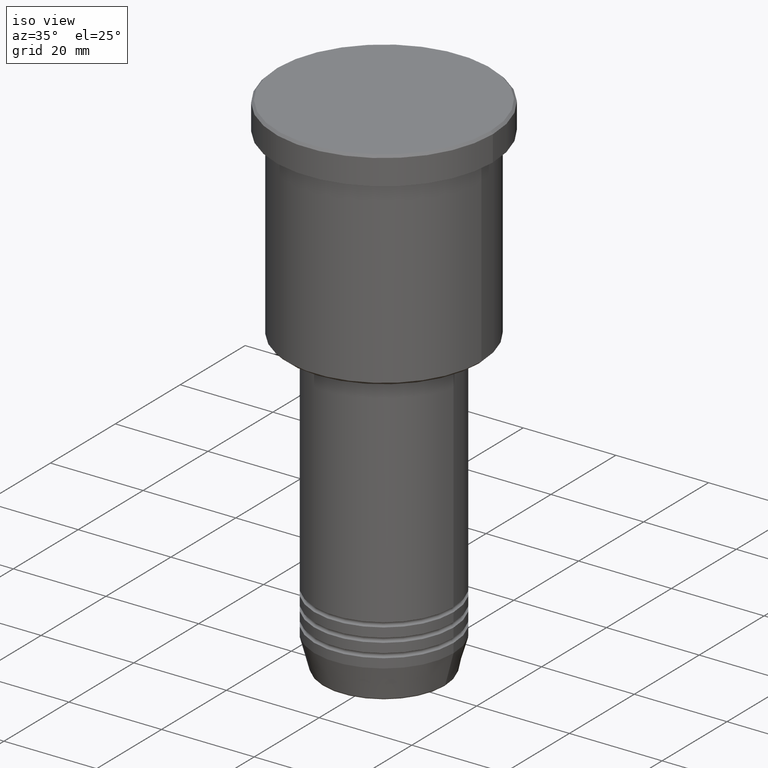
[diagram: clean part render]
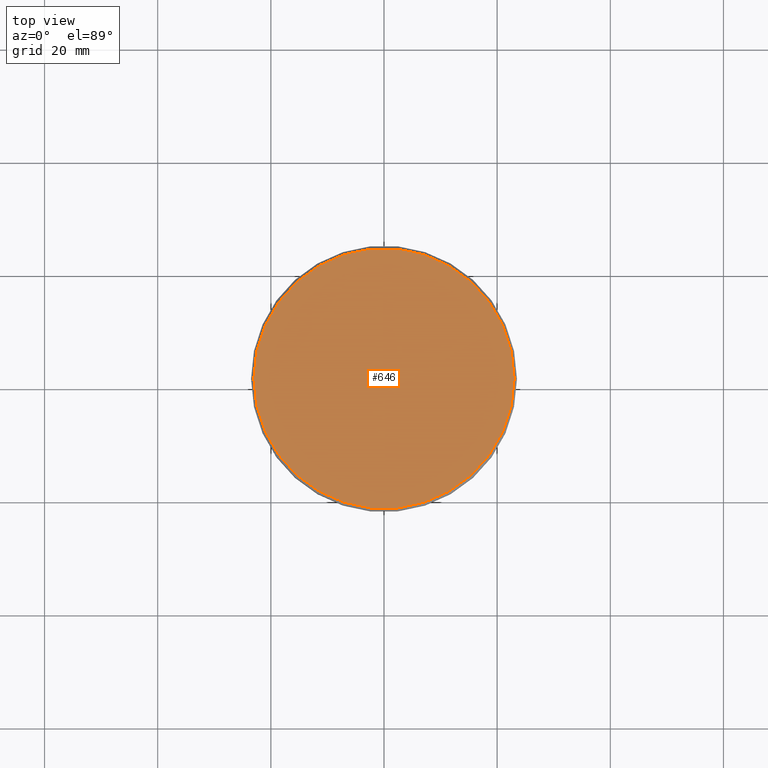
[diagram: tour spotlight — one face highlighted and labeled with its STEP entity id]
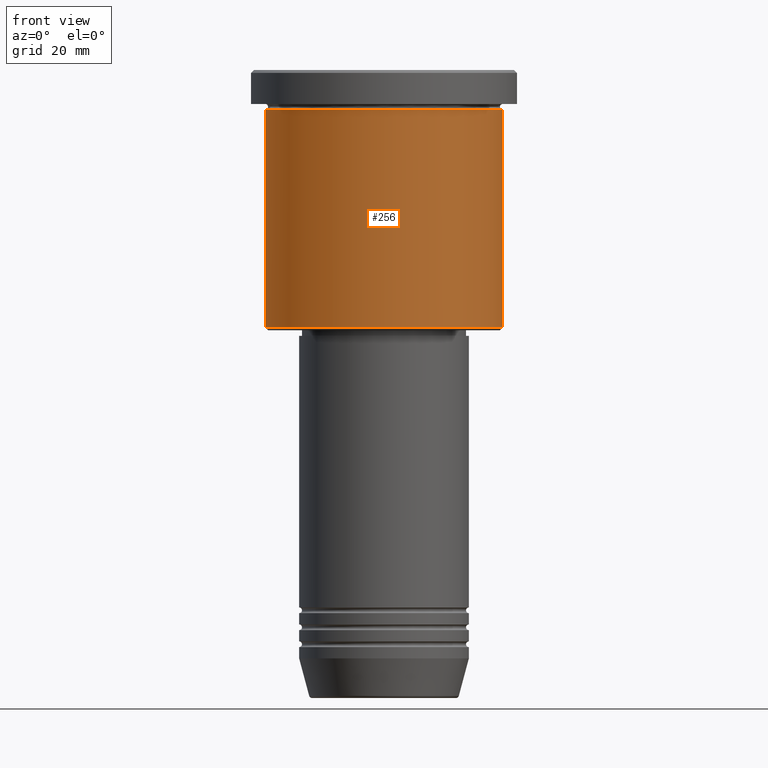
[diagram: tour spotlight — one face highlighted and labeled with its STEP entity id]
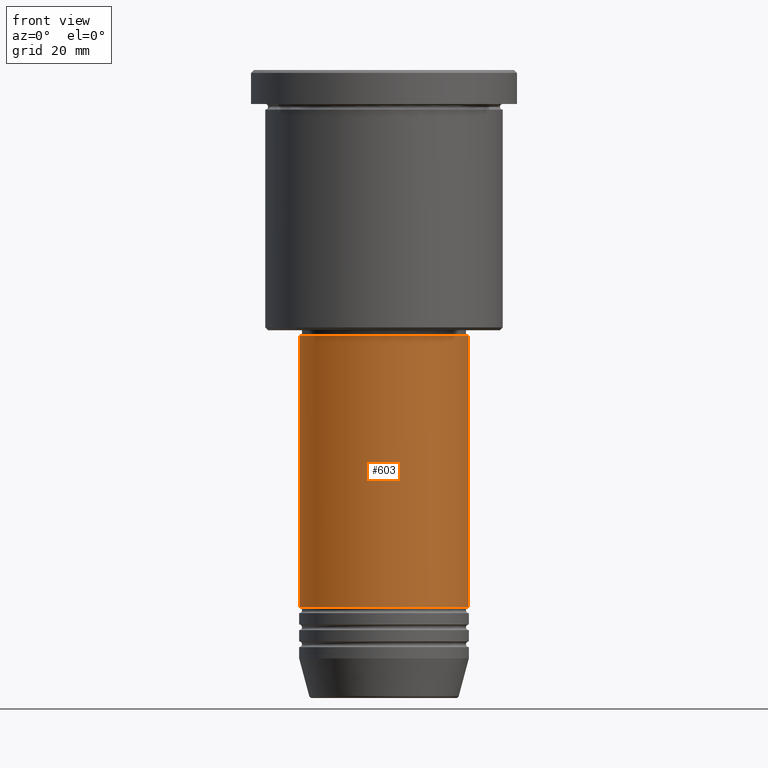
[diagram: tour spotlight — one face highlighted and labeled with its STEP entity id]
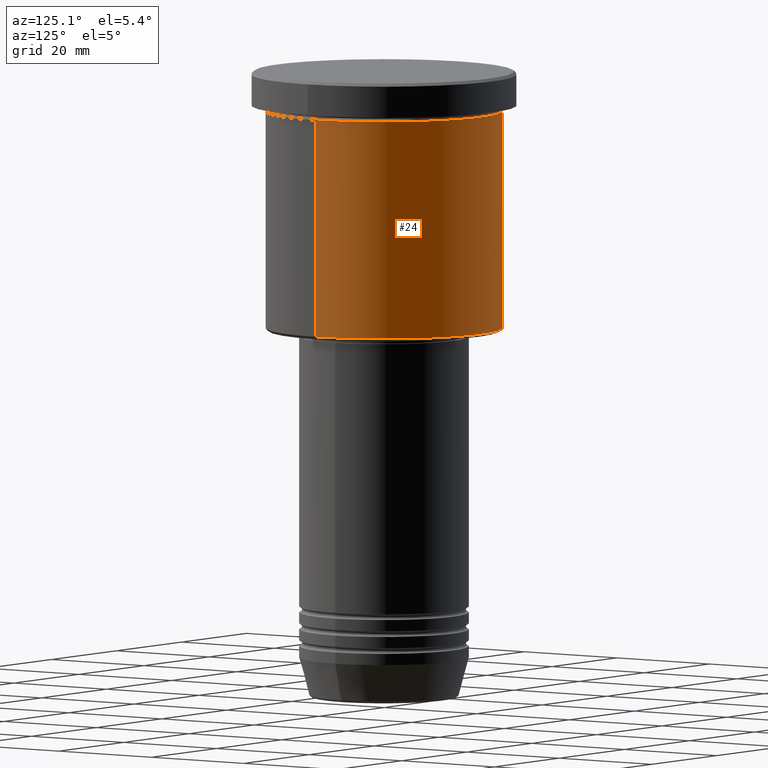
[diagram: tour spotlight — one face highlighted and labeled with its STEP entity id]
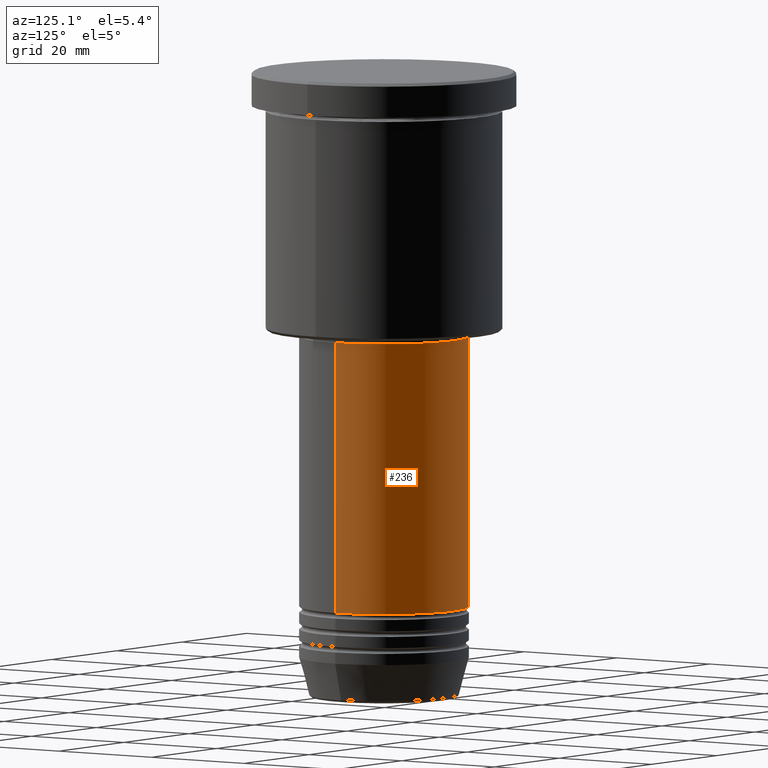
[diagram: tour spotlight — one face highlighted and labeled with its STEP entity id]
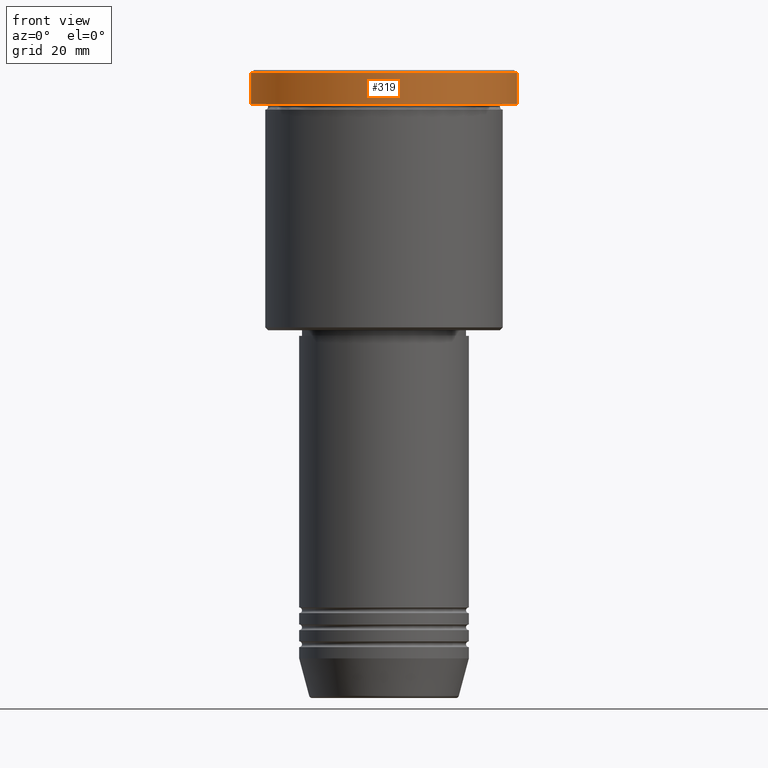
[diagram: tour spotlight — one face highlighted and labeled with its STEP entity id]
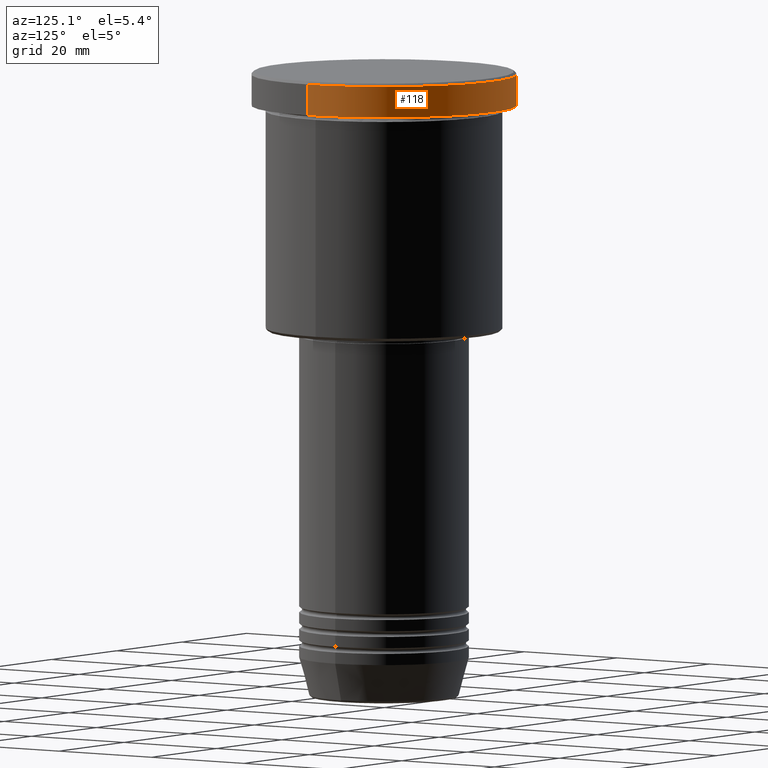
[diagram: tour spotlight — one face highlighted and labeled with its STEP entity id]
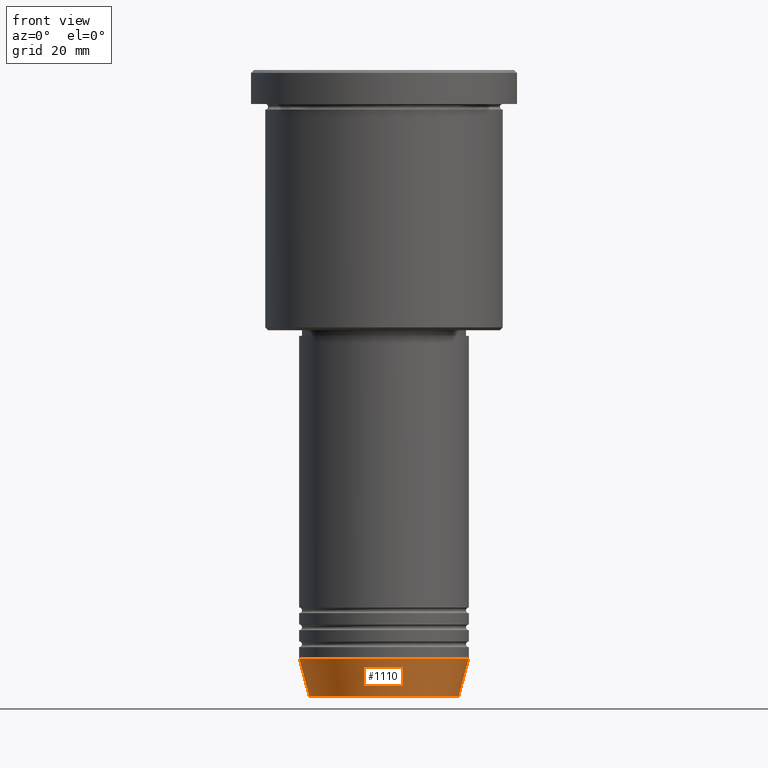
[diagram: tour spotlight — one face highlighted and labeled with its STEP entity id]
A machine part: a face-by-face anatomy tour. The part has 43 B-rep faces; the first image is the clean iso view, then the 8 largest visible faces are spotlighted one at a time (largest first), each with its STEP entity span.

Face 1 — top view, entity #646. In plain terms, the highlighted planar face has unit normal (0, -0, 1).
Definition (entity closure, byte-faithful):
#6 = CARTESIAN_POINT ( 'NONE',  ( 0.000000000000000000, 0.000000000000000000, 0.000000000000000000 ) ) ;
#207 = DIRECTION ( 'NONE',  ( -0.000000000000000000, -0.000000000000000000, 1.000000000000000000 ) ) ;
#226 = AXIS2_PLACEMENT_3D ( 'NONE', #6, #290, #749 ) ;
#290 = DIRECTION ( 'NONE',  ( -0.000000000000000000, -0.000000000000000000, 1.000000000000000000 ) ) ;
#305 = DIRECTION ( 'NONE',  ( 1.000000000000000000, 0.000000000000000000, 0.000000000000000000 ) ) ;
#464 = CARTESIAN_POINT ( 'NONE',  ( 23.00000000000001066, 2.847303808017596928E-15, 0.000000000000000000 ) ) ;
#490 = AXIS2_PLACEMENT_3D ( 'NONE', #946, #207, #497 ) ;
#497 = DIRECTION ( 'NONE',  ( 1.000000000000000000, 0.000000000000000000, 0.000000000000000000 ) ) ;
#517 = FACE_OUTER_BOUND ( 'NONE', #578, .T. ) ;
#528 = VERTEX_POINT ( 'NONE', #685 ) ;
#542 = AXIS2_PLACEMENT_3D ( 'NONE', #1119, #678, #305 ) ;
#578 = EDGE_LOOP ( 'NONE', ( #764, #1169 ) ) ;
#646 = ADVANCED_FACE ( 'NONE', ( #517 ), #870, .T. ) ;
#678 = DIRECTION ( 'NONE',  ( 0.000000000000000000, -0.000000000000000000, 1.000000000000000000 ) ) ;
#685 = CARTESIAN_POINT ( 'NONE',  ( -23.00000000000001066, 0.000000000000000000, 0.000000000000000000 ) ) ;
#711 = CIRCLE ( 'NONE', #226, 23.00000000000001066 ) ;
#733 = VERTEX_POINT ( 'NONE', #464 ) ;
#749 = DIRECTION ( 'NONE',  ( 1.000000000000000000, 0.000000000000000000, 0.000000000000000000 ) ) ;
#764 = ORIENTED_EDGE ( 'NONE', *, *, #1170, .T. ) ;
#778 = EDGE_CURVE ( 'NONE', #733, #528, #711, .T. ) ;
#870 = PLANE ( 'NONE',  #542 ) ;
#946 = CARTESIAN_POINT ( 'NONE',  ( 0.000000000000000000, 0.000000000000000000, 0.000000000000000000 ) ) ;
#1119 = CARTESIAN_POINT ( 'NONE',  ( 0.000000000000000000, 0.000000000000000000, 0.000000000000000000 ) ) ;
#1159 = CIRCLE ( 'NONE', #490, 23.00000000000001066 ) ;
#1169 = ORIENTED_EDGE ( 'NONE', *, *, #778, .T. ) ;
#1170 = EDGE_CURVE ( 'NONE', #528, #733, #1159, .T. ) ;

Face 2 — front view, entity #256. In plain terms, the highlighted cylindrical surface (partial cylindrical patch) has radius 21 mm, axis along (-0, -0, 1).
Definition (entity closure, byte-faithful):
#9 = AXIS2_PLACEMENT_3D ( 'NONE', #1100, #740, #934 ) ;
#66 = CARTESIAN_POINT ( 'NONE',  ( 21.00000000000000000, 0.000000000000000000, 0.000000000000000000 ) ) ;
#68 = DIRECTION ( 'NONE',  ( -0.000000000000000000, -0.000000000000000000, 1.000000000000000000 ) ) ;
#121 = ORIENTED_EDGE ( 'NONE', *, *, #697, .T. ) ;
#215 = DIRECTION ( 'NONE',  ( 1.000000000000000000, 0.000000000000000000, 0.000000000000000000 ) ) ;
#218 = CARTESIAN_POINT ( 'NONE',  ( -21.00000000000000000, 2.571758278209441661E-15, 0.000000000000000000 ) ) ;
#255 = LINE ( 'NONE', #66, #466 ) ;
#256 = ADVANCED_FACE ( 'NONE', ( #480 ), #1181, .T. ) ;
#322 = EDGE_LOOP ( 'NONE', ( #718, #121, #1072, #511 ) ) ;
#351 = CIRCLE ( 'NONE', #369, 21.00000000000000000 ) ;
#369 = AXIS2_PLACEMENT_3D ( 'NONE', #405, #766, #215 ) ;
#405 = CARTESIAN_POINT ( 'NONE',  ( 0.000000000000000000, 0.000000000000000000, -6.999999999999994671 ) ) ;
#410 = AXIS2_PLACEMENT_3D ( 'NONE', #974, #68, #632 ) ;
#466 = VECTOR ( 'NONE', #978, 1000.000000000000000 ) ;
#480 = FACE_OUTER_BOUND ( 'NONE', #322, .T. ) ;
#510 = CARTESIAN_POINT ( 'NONE',  ( -21.00000000000000000, 2.571758278209441661E-15, -45.49999999999998579 ) ) ;
#511 = ORIENTED_EDGE ( 'NONE', *, *, #527, .F. ) ;
#527 = EDGE_CURVE ( 'NONE', #695, #1056, #351, .T. ) ;
#627 = CARTESIAN_POINT ( 'NONE',  ( -21.00000000000000000, 2.571758278209441661E-15, -6.999999999999994671 ) ) ;
#632 = DIRECTION ( 'NONE',  ( -1.000000000000000000, 0.000000000000000000, 0.000000000000000000 ) ) ;
#649 = CARTESIAN_POINT ( 'NONE',  ( 21.00000000000000000, 0.000000000000000000, -6.999999999999994671 ) ) ;
#672 = CIRCLE ( 'NONE', #410, 21.00000000000000000 ) ;
#680 = DIRECTION ( 'NONE',  ( -0.000000000000000000, -0.000000000000000000, 1.000000000000000000 ) ) ;
#695 = VERTEX_POINT ( 'NONE', #627 ) ;
#697 = EDGE_CURVE ( 'NONE', #864, #858, #672, .T. ) ;
#718 = ORIENTED_EDGE ( 'NONE', *, *, #1163, .F. ) ;
#740 = DIRECTION ( 'NONE',  ( -0.000000000000000000, -0.000000000000000000, 1.000000000000000000 ) ) ;
#757 = LINE ( 'NONE', #218, #932 ) ;
#766 = DIRECTION ( 'NONE',  ( -0.000000000000000000, -0.000000000000000000, 1.000000000000000000 ) ) ;
#858 = VERTEX_POINT ( 'NONE', #939 ) ;
#864 = VERTEX_POINT ( 'NONE', #510 ) ;
#932 = VECTOR ( 'NONE', #680, 1000.000000000000000 ) ;
#934 = DIRECTION ( 'NONE',  ( 1.000000000000000000, 0.000000000000000000, 0.000000000000000000 ) ) ;
#939 = CARTESIAN_POINT ( 'NONE',  ( 21.00000000000000000, 0.000000000000000000, -45.49999999999998579 ) ) ;
#974 = CARTESIAN_POINT ( 'NONE',  ( 0.000000000000000000, 0.000000000000000000, -45.49999999999998579 ) ) ;
#976 = EDGE_CURVE ( 'NONE', #858, #1056, #255, .T. ) ;
#978 = DIRECTION ( 'NONE',  ( -0.000000000000000000, -0.000000000000000000, 1.000000000000000000 ) ) ;
#1056 = VERTEX_POINT ( 'NONE', #649 ) ;
#1072 = ORIENTED_EDGE ( 'NONE', *, *, #976, .T. ) ;
#1100 = CARTESIAN_POINT ( 'NONE',  ( 0.000000000000000000, 0.000000000000000000, 0.000000000000000000 ) ) ;
#1163 = EDGE_CURVE ( 'NONE', #864, #695, #757, .T. ) ;
#1181 = CYLINDRICAL_SURFACE ( 'NONE', #9, 21.00000000000000000 ) ;

Face 3 — front view, entity #603. In plain terms, the highlighted cylindrical surface (partial cylindrical patch) has radius 15 mm, axis along (-0, -0, 1).
Definition (entity closure, byte-faithful):
#29 = DIRECTION ( 'NONE',  ( -0.000000000000000000, -0.000000000000000000, 1.000000000000000000 ) ) ;
#43 = CARTESIAN_POINT ( 'NONE',  ( 0.000000000000000000, 0.000000000000000000, 0.000000000000000000 ) ) ;
#72 = DIRECTION ( 'NONE',  ( 1.000000000000000000, 0.000000000000000000, 0.000000000000000000 ) ) ;
#77 = VERTEX_POINT ( 'NONE', #1035 ) ;
#282 = DIRECTION ( 'NONE',  ( -0.000000000000000000, -0.000000000000000000, 1.000000000000000000 ) ) ;
#284 = CARTESIAN_POINT ( 'NONE',  ( 15.00000000000000000, 0.000000000000000000, -47.00000000000000711 ) ) ;
#301 = LINE ( 'NONE', #924, #334 ) ;
#317 = DIRECTION ( 'NONE',  ( 1.000000000000000000, 0.000000000000000000, 0.000000000000000000 ) ) ;
#334 = VECTOR ( 'NONE', #1011, 1000.000000000000000 ) ;
#337 = CYLINDRICAL_SURFACE ( 'NONE', #1041, 15.00000000000000000 ) ;
#360 = EDGE_CURVE ( 'NONE', #800, #478, #463, .T. ) ;
#417 = CARTESIAN_POINT ( 'NONE',  ( 15.00000000000000000, 0.000000000000000000, -94.99999999999997158 ) ) ;
#419 = ORIENTED_EDGE ( 'NONE', *, *, #360, .F. ) ;
#463 = CIRCLE ( 'NONE', #1112, 15.00000000000000000 ) ;
#478 = VERTEX_POINT ( 'NONE', #284 ) ;
#499 = ORIENTED_EDGE ( 'NONE', *, *, #756, .F. ) ;
#501 = EDGE_LOOP ( 'NONE', ( #499, #701, #1084, #419 ) ) ;
#549 = DIRECTION ( 'NONE',  ( -0.000000000000000000, -0.000000000000000000, 1.000000000000000000 ) ) ;
#553 = EDGE_CURVE ( 'NONE', #77, #586, #1156, .T. ) ;
#572 = CARTESIAN_POINT ( 'NONE',  ( -15.00000000000000000, 1.836970198721029589E-15, 0.000000000000000000 ) ) ;
#586 = VERTEX_POINT ( 'NONE', #417 ) ;
#590 = FACE_OUTER_BOUND ( 'NONE', #501, .T. ) ;
#602 = DIRECTION ( 'NONE',  ( 1.000000000000000000, 0.000000000000000000, 0.000000000000000000 ) ) ;
#603 = ADVANCED_FACE ( 'NONE', ( #590 ), #337, .T. ) ;
#701 = ORIENTED_EDGE ( 'NONE', *, *, #553, .T. ) ;
#756 = EDGE_CURVE ( 'NONE', #77, #800, #987, .T. ) ;
#775 = AXIS2_PLACEMENT_3D ( 'NONE', #785, #29, #602 ) ;
#781 = DIRECTION ( 'NONE',  ( -0.000000000000000000, -0.000000000000000000, 1.000000000000000000 ) ) ;
#785 = CARTESIAN_POINT ( 'NONE',  ( 0.000000000000000000, 0.000000000000000000, -94.99999999999997158 ) ) ;
#800 = VERTEX_POINT ( 'NONE', #926 ) ;
#816 = CARTESIAN_POINT ( 'NONE',  ( 0.000000000000000000, 0.000000000000000000, -47.00000000000000711 ) ) ;
#924 = CARTESIAN_POINT ( 'NONE',  ( 15.00000000000000000, 0.000000000000000000, 0.000000000000000000 ) ) ;
#926 = CARTESIAN_POINT ( 'NONE',  ( -15.00000000000000000, 1.836970198721029589E-15, -47.00000000000000711 ) ) ;
#930 = VECTOR ( 'NONE', #282, 1000.000000000000000 ) ;
#987 = LINE ( 'NONE', #572, #930 ) ;
#1011 = DIRECTION ( 'NONE',  ( -0.000000000000000000, -0.000000000000000000, 1.000000000000000000 ) ) ;
#1035 = CARTESIAN_POINT ( 'NONE',  ( -15.00000000000000000, 1.836970198721029589E-15, -94.99999999999997158 ) ) ;
#1041 = AXIS2_PLACEMENT_3D ( 'NONE', #43, #781, #317 ) ;
#1084 = ORIENTED_EDGE ( 'NONE', *, *, #1145, .T. ) ;
#1112 = AXIS2_PLACEMENT_3D ( 'NONE', #816, #549, #72 ) ;
#1145 = EDGE_CURVE ( 'NONE', #586, #478, #301, .T. ) ;
#1156 = CIRCLE ( 'NONE', #775, 15.00000000000000000 ) ;

Face 4 — auxiliary view, entity #24. In plain terms, the highlighted cylindrical surface (partial cylindrical patch) has radius 21 mm, axis along (-0, -0, 1).
Definition (entity closure, byte-faithful):
#24 = ADVANCED_FACE ( 'NONE', ( #514 ), #82, .T. ) ;
#66 = CARTESIAN_POINT ( 'NONE',  ( 21.00000000000000000, 0.000000000000000000, 0.000000000000000000 ) ) ;
#82 = CYLINDRICAL_SURFACE ( 'NONE', #409, 21.00000000000000000 ) ;
#89 = CIRCLE ( 'NONE', #1058, 21.00000000000000000 ) ;
#194 = ORIENTED_EDGE ( 'NONE', *, *, #1163, .T. ) ;
#218 = CARTESIAN_POINT ( 'NONE',  ( -21.00000000000000000, 2.571758278209441661E-15, 0.000000000000000000 ) ) ;
#255 = LINE ( 'NONE', #66, #466 ) ;
#258 = DIRECTION ( 'NONE',  ( -0.000000000000000000, -0.000000000000000000, 1.000000000000000000 ) ) ;
#262 = CARTESIAN_POINT ( 'NONE',  ( 0.000000000000000000, 0.000000000000000000, -6.999999999999994671 ) ) ;
#345 = EDGE_CURVE ( 'NONE', #1056, #695, #875, .T. ) ;
#409 = AXIS2_PLACEMENT_3D ( 'NONE', #437, #872, #611 ) ;
#437 = CARTESIAN_POINT ( 'NONE',  ( 0.000000000000000000, 0.000000000000000000, 0.000000000000000000 ) ) ;
#466 = VECTOR ( 'NONE', #978, 1000.000000000000000 ) ;
#510 = CARTESIAN_POINT ( 'NONE',  ( -21.00000000000000000, 2.571758278209441661E-15, -45.49999999999998579 ) ) ;
#514 = FACE_OUTER_BOUND ( 'NONE', #783, .T. ) ;
#611 = DIRECTION ( 'NONE',  ( 1.000000000000000000, 0.000000000000000000, 0.000000000000000000 ) ) ;
#627 = CARTESIAN_POINT ( 'NONE',  ( -21.00000000000000000, 2.571758278209441661E-15, -6.999999999999994671 ) ) ;
#649 = CARTESIAN_POINT ( 'NONE',  ( 21.00000000000000000, 0.000000000000000000, -6.999999999999994671 ) ) ;
#680 = DIRECTION ( 'NONE',  ( -0.000000000000000000, -0.000000000000000000, 1.000000000000000000 ) ) ;
#695 = VERTEX_POINT ( 'NONE', #627 ) ;
#705 = EDGE_CURVE ( 'NONE', #858, #864, #89, .T. ) ;
#757 = LINE ( 'NONE', #218, #932 ) ;
#765 = ORIENTED_EDGE ( 'NONE', *, *, #345, .F. ) ;
#783 = EDGE_LOOP ( 'NONE', ( #1049, #194, #765, #979 ) ) ;
#858 = VERTEX_POINT ( 'NONE', #939 ) ;
#864 = VERTEX_POINT ( 'NONE', #510 ) ;
#872 = DIRECTION ( 'NONE',  ( -0.000000000000000000, -0.000000000000000000, 1.000000000000000000 ) ) ;
#875 = CIRCLE ( 'NONE', #1018, 21.00000000000000000 ) ;
#932 = VECTOR ( 'NONE', #680, 1000.000000000000000 ) ;
#939 = CARTESIAN_POINT ( 'NONE',  ( 21.00000000000000000, 0.000000000000000000, -45.49999999999998579 ) ) ;
#976 = EDGE_CURVE ( 'NONE', #858, #1056, #255, .T. ) ;
#978 = DIRECTION ( 'NONE',  ( -0.000000000000000000, -0.000000000000000000, 1.000000000000000000 ) ) ;
#979 = ORIENTED_EDGE ( 'NONE', *, *, #976, .F. ) ;
#980 = DIRECTION ( 'NONE',  ( -1.000000000000000000, 0.000000000000000000, 0.000000000000000000 ) ) ;
#989 = DIRECTION ( 'NONE',  ( 1.000000000000000000, 0.000000000000000000, 0.000000000000000000 ) ) ;
#1018 = AXIS2_PLACEMENT_3D ( 'NONE', #262, #258, #989 ) ;
#1049 = ORIENTED_EDGE ( 'NONE', *, *, #705, .T. ) ;
#1056 = VERTEX_POINT ( 'NONE', #649 ) ;
#1058 = AXIS2_PLACEMENT_3D ( 'NONE', #1165, #1161, #980 ) ;
#1161 = DIRECTION ( 'NONE',  ( -0.000000000000000000, -0.000000000000000000, 1.000000000000000000 ) ) ;
#1163 = EDGE_CURVE ( 'NONE', #864, #695, #757, .T. ) ;
#1165 = CARTESIAN_POINT ( 'NONE',  ( 0.000000000000000000, 0.000000000000000000, -45.49999999999998579 ) ) ;

Face 5 — auxiliary view, entity #236. In plain terms, the highlighted cylindrical surface (partial cylindrical patch) has radius 15 mm, axis along (-0, -0, 1).
Definition (entity closure, byte-faithful):
#34 = DIRECTION ( 'NONE',  ( -0.000000000000000000, -0.000000000000000000, 1.000000000000000000 ) ) ;
#77 = VERTEX_POINT ( 'NONE', #1035 ) ;
#178 = DIRECTION ( 'NONE',  ( -0.000000000000000000, -0.000000000000000000, 1.000000000000000000 ) ) ;
#200 = CARTESIAN_POINT ( 'NONE',  ( 0.000000000000000000, 0.000000000000000000, -47.00000000000000711 ) ) ;
#234 = DIRECTION ( 'NONE',  ( -0.000000000000000000, -0.000000000000000000, 1.000000000000000000 ) ) ;
#236 = ADVANCED_FACE ( 'NONE', ( #666 ), #1016, .T. ) ;
#249 = CARTESIAN_POINT ( 'NONE',  ( 0.000000000000000000, 0.000000000000000000, -94.99999999999997158 ) ) ;
#279 = ORIENTED_EDGE ( 'NONE', *, *, #840, .F. ) ;
#282 = DIRECTION ( 'NONE',  ( -0.000000000000000000, -0.000000000000000000, 1.000000000000000000 ) ) ;
#284 = CARTESIAN_POINT ( 'NONE',  ( 15.00000000000000000, 0.000000000000000000, -47.00000000000000711 ) ) ;
#301 = LINE ( 'NONE', #924, #334 ) ;
#334 = VECTOR ( 'NONE', #1011, 1000.000000000000000 ) ;
#387 = CARTESIAN_POINT ( 'NONE',  ( 0.000000000000000000, 0.000000000000000000, 0.000000000000000000 ) ) ;
#417 = CARTESIAN_POINT ( 'NONE',  ( 15.00000000000000000, 0.000000000000000000, -94.99999999999997158 ) ) ;
#429 = AXIS2_PLACEMENT_3D ( 'NONE', #249, #234, #1050 ) ;
#478 = VERTEX_POINT ( 'NONE', #284 ) ;
#493 = DIRECTION ( 'NONE',  ( 1.000000000000000000, 0.000000000000000000, 0.000000000000000000 ) ) ;
#522 = AXIS2_PLACEMENT_3D ( 'NONE', #387, #178, #557 ) ;
#557 = DIRECTION ( 'NONE',  ( 1.000000000000000000, 0.000000000000000000, 0.000000000000000000 ) ) ;
#572 = CARTESIAN_POINT ( 'NONE',  ( -15.00000000000000000, 1.836970198721029589E-15, 0.000000000000000000 ) ) ;
#584 = ORIENTED_EDGE ( 'NONE', *, *, #1145, .F. ) ;
#586 = VERTEX_POINT ( 'NONE', #417 ) ;
#613 = ORIENTED_EDGE ( 'NONE', *, *, #756, .T. ) ;
#666 = FACE_OUTER_BOUND ( 'NONE', #917, .T. ) ;
#721 = EDGE_CURVE ( 'NONE', #586, #77, #982, .T. ) ;
#756 = EDGE_CURVE ( 'NONE', #77, #800, #987, .T. ) ;
#792 = AXIS2_PLACEMENT_3D ( 'NONE', #200, #34, #493 ) ;
#800 = VERTEX_POINT ( 'NONE', #926 ) ;
#840 = EDGE_CURVE ( 'NONE', #478, #800, #896, .T. ) ;
#896 = CIRCLE ( 'NONE', #792, 15.00000000000000000 ) ;
#917 = EDGE_LOOP ( 'NONE', ( #927, #613, #279, #584 ) ) ;
#924 = CARTESIAN_POINT ( 'NONE',  ( 15.00000000000000000, 0.000000000000000000, 0.000000000000000000 ) ) ;
#926 = CARTESIAN_POINT ( 'NONE',  ( -15.00000000000000000, 1.836970198721029589E-15, -47.00000000000000711 ) ) ;
#927 = ORIENTED_EDGE ( 'NONE', *, *, #721, .T. ) ;
#930 = VECTOR ( 'NONE', #282, 1000.000000000000000 ) ;
#982 = CIRCLE ( 'NONE', #429, 15.00000000000000000 ) ;
#987 = LINE ( 'NONE', #572, #930 ) ;
#1011 = DIRECTION ( 'NONE',  ( -0.000000000000000000, -0.000000000000000000, 1.000000000000000000 ) ) ;
#1016 = CYLINDRICAL_SURFACE ( 'NONE', #522, 15.00000000000000000 ) ;
#1035 = CARTESIAN_POINT ( 'NONE',  ( -15.00000000000000000, 1.836970198721029589E-15, -94.99999999999997158 ) ) ;
#1050 = DIRECTION ( 'NONE',  ( 1.000000000000000000, 0.000000000000000000, 0.000000000000000000 ) ) ;
#1145 = EDGE_CURVE ( 'NONE', #586, #478, #301, .T. ) ;

Face 6 — front view, entity #319. In plain terms, the highlighted cylindrical surface (partial cylindrical patch) has radius 23.5 mm, axis along (-0, -0, 1).
Definition (entity closure, byte-faithful):
#39 = DIRECTION ( 'NONE',  ( -0.000000000000000000, -0.000000000000000000, 1.000000000000000000 ) ) ;
#62 = DIRECTION ( 'NONE',  ( 0.000000000000000000, 0.000000000000000000, -1.000000000000000000 ) ) ;
#88 = AXIS2_PLACEMENT_3D ( 'NONE', #1120, #418, #216 ) ;
#101 = CARTESIAN_POINT ( 'NONE',  ( 23.50000000000000000, 0.000000000000000000, -0.4999999999999865663 ) ) ;
#103 = EDGE_LOOP ( 'NONE', ( #328, #962, #1143, #662 ) ) ;
#161 = DIRECTION ( 'NONE',  ( -0.000000000000000000, -0.000000000000000000, 1.000000000000000000 ) ) ;
#196 = CARTESIAN_POINT ( 'NONE',  ( -23.50000000000000000, 2.877919977996280320E-15, -5.999999999999994671 ) ) ;
#199 = VERTEX_POINT ( 'NONE', #196 ) ;
#216 = DIRECTION ( 'NONE',  ( 1.000000000000000000, 0.000000000000000000, 0.000000000000000000 ) ) ;
#222 = CIRCLE ( 'NONE', #88, 23.50000000000000000 ) ;
#242 = CARTESIAN_POINT ( 'NONE',  ( 23.50000000000000000, 0.000000000000000000, 0.000000000000000000 ) ) ;
#264 = EDGE_CURVE ( 'NONE', #199, #520, #222, .T. ) ;
#268 = FACE_OUTER_BOUND ( 'NONE', #103, .T. ) ;
#319 = ADVANCED_FACE ( 'NONE', ( #268 ), #614, .T. ) ;
#328 = ORIENTED_EDGE ( 'NONE', *, *, #1150, .F. ) ;
#359 = CARTESIAN_POINT ( 'NONE',  ( 0.000000000000000000, 0.000000000000000000, 0.000000000000000000 ) ) ;
#396 = CARTESIAN_POINT ( 'NONE',  ( -23.50000000000000000, 2.877919977996280320E-15, 0.000000000000000000 ) ) ;
#397 = EDGE_CURVE ( 'NONE', #520, #425, #968, .T. ) ;
#413 = LINE ( 'NONE', #396, #985 ) ;
#418 = DIRECTION ( 'NONE',  ( -0.000000000000000000, -0.000000000000000000, 1.000000000000000000 ) ) ;
#425 = VERTEX_POINT ( 'NONE', #101 ) ;
#515 = CARTESIAN_POINT ( 'NONE',  ( -23.50000000000000000, 2.877919977996280320E-15, -0.4999999999999865663 ) ) ;
#520 = VERTEX_POINT ( 'NONE', #1099 ) ;
#577 = AXIS2_PLACEMENT_3D ( 'NONE', #359, #805, #1157 ) ;
#580 = AXIS2_PLACEMENT_3D ( 'NONE', #972, #62, #625 ) ;
#614 = CYLINDRICAL_SURFACE ( 'NONE', #577, 23.50000000000000000 ) ;
#625 = DIRECTION ( 'NONE',  ( 1.000000000000000000, 0.000000000000000000, 0.000000000000000000 ) ) ;
#653 = VECTOR ( 'NONE', #161, 1000.000000000000000 ) ;
#662 = ORIENTED_EDGE ( 'NONE', *, *, #971, .T. ) ;
#693 = CIRCLE ( 'NONE', #580, 23.50000000000000000 ) ;
#805 = DIRECTION ( 'NONE',  ( -0.000000000000000000, -0.000000000000000000, 1.000000000000000000 ) ) ;
#881 = VERTEX_POINT ( 'NONE', #515 ) ;
#962 = ORIENTED_EDGE ( 'NONE', *, *, #264, .T. ) ;
#968 = LINE ( 'NONE', #242, #653 ) ;
#971 = EDGE_CURVE ( 'NONE', #425, #881, #693, .T. ) ;
#972 = CARTESIAN_POINT ( 'NONE',  ( 0.000000000000000000, 0.000000000000000000, -0.4999999999999865663 ) ) ;
#985 = VECTOR ( 'NONE', #39, 1000.000000000000000 ) ;
#1099 = CARTESIAN_POINT ( 'NONE',  ( 23.50000000000000000, 0.000000000000000000, -5.999999999999994671 ) ) ;
#1120 = CARTESIAN_POINT ( 'NONE',  ( 0.000000000000000000, 0.000000000000000000, -5.999999999999994671 ) ) ;
#1143 = ORIENTED_EDGE ( 'NONE', *, *, #397, .T. ) ;
#1150 = EDGE_CURVE ( 'NONE', #199, #881, #413, .T. ) ;
#1157 = DIRECTION ( 'NONE',  ( 1.000000000000000000, 0.000000000000000000, 0.000000000000000000 ) ) ;

Face 7 — auxiliary view, entity #118. In plain terms, the highlighted cylindrical surface (partial cylindrical patch) has radius 23.5 mm, axis along (-0, -0, 1).
Definition (entity closure, byte-faithful):
#39 = DIRECTION ( 'NONE',  ( -0.000000000000000000, -0.000000000000000000, 1.000000000000000000 ) ) ;
#101 = CARTESIAN_POINT ( 'NONE',  ( 23.50000000000000000, 0.000000000000000000, -0.4999999999999865663 ) ) ;
#118 = ADVANCED_FACE ( 'NONE', ( #786 ), #342, .T. ) ;
#155 = DIRECTION ( 'NONE',  ( -0.000000000000000000, -0.000000000000000000, 1.000000000000000000 ) ) ;
#161 = DIRECTION ( 'NONE',  ( -0.000000000000000000, -0.000000000000000000, 1.000000000000000000 ) ) ;
#175 = DIRECTION ( 'NONE',  ( 0.000000000000000000, 0.000000000000000000, -1.000000000000000000 ) ) ;
#196 = CARTESIAN_POINT ( 'NONE',  ( -23.50000000000000000, 2.877919977996280320E-15, -5.999999999999994671 ) ) ;
#199 = VERTEX_POINT ( 'NONE', #196 ) ;
#242 = CARTESIAN_POINT ( 'NONE',  ( 23.50000000000000000, 0.000000000000000000, 0.000000000000000000 ) ) ;
#257 = ORIENTED_EDGE ( 'NONE', *, *, #1150, .T. ) ;
#311 = AXIS2_PLACEMENT_3D ( 'NONE', #898, #355, #961 ) ;
#342 = CYLINDRICAL_SURFACE ( 'NONE', #448, 23.50000000000000000 ) ;
#355 = DIRECTION ( 'NONE',  ( -0.000000000000000000, -0.000000000000000000, 1.000000000000000000 ) ) ;
#367 = ORIENTED_EDGE ( 'NONE', *, *, #999, .T. ) ;
#372 = CIRCLE ( 'NONE', #311, 23.50000000000000000 ) ;
#396 = CARTESIAN_POINT ( 'NONE',  ( -23.50000000000000000, 2.877919977996280320E-15, 0.000000000000000000 ) ) ;
#397 = EDGE_CURVE ( 'NONE', #520, #425, #968, .T. ) ;
#413 = LINE ( 'NONE', #396, #985 ) ;
#425 = VERTEX_POINT ( 'NONE', #101 ) ;
#448 = AXIS2_PLACEMENT_3D ( 'NONE', #518, #155, #1063 ) ;
#515 = CARTESIAN_POINT ( 'NONE',  ( -23.50000000000000000, 2.877919977996280320E-15, -0.4999999999999865663 ) ) ;
#518 = CARTESIAN_POINT ( 'NONE',  ( 0.000000000000000000, 0.000000000000000000, 0.000000000000000000 ) ) ;
#520 = VERTEX_POINT ( 'NONE', #1099 ) ;
#554 = DIRECTION ( 'NONE',  ( 1.000000000000000000, 0.000000000000000000, 0.000000000000000000 ) ) ;
#561 = ORIENTED_EDGE ( 'NONE', *, *, #397, .F. ) ;
#616 = CIRCLE ( 'NONE', #1077, 23.50000000000000000 ) ;
#626 = ORIENTED_EDGE ( 'NONE', *, *, #826, .T. ) ;
#653 = VECTOR ( 'NONE', #161, 1000.000000000000000 ) ;
#698 = EDGE_LOOP ( 'NONE', ( #367, #257, #626, #561 ) ) ;
#786 = FACE_OUTER_BOUND ( 'NONE', #698, .T. ) ;
#826 = EDGE_CURVE ( 'NONE', #881, #425, #616, .T. ) ;
#881 = VERTEX_POINT ( 'NONE', #515 ) ;
#898 = CARTESIAN_POINT ( 'NONE',  ( 0.000000000000000000, 0.000000000000000000, -5.999999999999994671 ) ) ;
#905 = CARTESIAN_POINT ( 'NONE',  ( 0.000000000000000000, 0.000000000000000000, -0.4999999999999865663 ) ) ;
#961 = DIRECTION ( 'NONE',  ( 1.000000000000000000, 0.000000000000000000, 0.000000000000000000 ) ) ;
#968 = LINE ( 'NONE', #242, #653 ) ;
#985 = VECTOR ( 'NONE', #39, 1000.000000000000000 ) ;
#999 = EDGE_CURVE ( 'NONE', #520, #199, #372, .T. ) ;
#1063 = DIRECTION ( 'NONE',  ( 1.000000000000000000, 0.000000000000000000, 0.000000000000000000 ) ) ;
#1077 = AXIS2_PLACEMENT_3D ( 'NONE', #905, #175, #554 ) ;
#1099 = CARTESIAN_POINT ( 'NONE',  ( 23.50000000000000000, 0.000000000000000000, -5.999999999999994671 ) ) ;
#1150 = EDGE_CURVE ( 'NONE', #199, #881, #413, .T. ) ;

Face 8 — front view, entity #1110. In plain terms, the highlighted conical surface has half-angle 15 deg.
Definition (entity closure, byte-faithful):
#19 = DIRECTION ( 'NONE',  ( 0.2588190451025213501, 0.000000000000000000, 0.9659258262890680902 ) ) ;
#20 = DIRECTION ( 'NONE',  ( 1.000000000000000000, 0.000000000000000000, 0.000000000000000000 ) ) ;
#44 = CARTESIAN_POINT ( 'NONE',  ( 13.22365507213718949, 0.000000000000000000, -110.6294095225512564 ) ) ;
#56 = CARTESIAN_POINT ( 'NONE',  ( -15.00000000000000000, 1.836970198721029589E-15, -104.0000000000000142 ) ) ;
#94 = CARTESIAN_POINT ( 'NONE',  ( 0.000000000000000000, 0.000000000000000000, -104.0000000000000142 ) ) ;
#97 = DIRECTION ( 'NONE',  ( -0.000000000000000000, -0.000000000000000000, 1.000000000000000000 ) ) ;
#109 = EDGE_CURVE ( 'NONE', #459, #956, #879, .T. ) ;
#112 = ORIENTED_EDGE ( 'NONE', *, *, #411, .T. ) ;
#116 = VERTEX_POINT ( 'NONE', #44 ) ;
#123 = EDGE_LOOP ( 'NONE', ( #473, #1131, #112, #844 ) ) ;
#132 = AXIS2_PLACEMENT_3D ( 'NONE', #747, #377, #737 ) ;
#151 = EDGE_CURVE ( 'NONE', #459, #116, #163, .T. ) ;
#163 = CIRCLE ( 'NONE', #748, 13.22365507213718949 ) ;
#310 = VECTOR ( 'NONE', #19, 1000.000000000000000 ) ;
#329 = CARTESIAN_POINT ( 'NONE',  ( 15.00000000000000000, 0.000000000000000000, -104.0000000000000142 ) ) ;
#377 = DIRECTION ( 'NONE',  ( -0.000000000000000000, -0.000000000000000000, 1.000000000000000000 ) ) ;
#379 = DIRECTION ( 'NONE',  ( -0.000000000000000000, -0.000000000000000000, 1.000000000000000000 ) ) ;
#411 = EDGE_CURVE ( 'NONE', #116, #621, #538, .T. ) ;
#459 = VERTEX_POINT ( 'NONE', #734 ) ;
#473 = ORIENTED_EDGE ( 'NONE', *, *, #109, .F. ) ;
#486 = CARTESIAN_POINT ( 'NONE',  ( 15.00000000000000000, 0.000000000000000000, -104.0000000000000142 ) ) ;
#526 = CONICAL_SURFACE ( 'NONE', #132, 15.00000000000000000, 0.2617993877991500740 ) ;
#538 = LINE ( 'NONE', #486, #310 ) ;
#552 = FACE_OUTER_BOUND ( 'NONE', #123, .T. ) ;
#617 = DIRECTION ( 'NONE',  ( -0.2588190451025213501, 3.169619151431772337E-17, 0.9659258262890680902 ) ) ;
#621 = VERTEX_POINT ( 'NONE', #329 ) ;
#734 = CARTESIAN_POINT ( 'NONE',  ( -13.22365507213718949, 1.728200442216588386E-15, -110.6294095225512564 ) ) ;
#737 = DIRECTION ( 'NONE',  ( 1.000000000000000000, 0.000000000000000000, 0.000000000000000000 ) ) ;
#741 = EDGE_CURVE ( 'NONE', #956, #621, #1158, .T. ) ;
#747 = CARTESIAN_POINT ( 'NONE',  ( 0.000000000000000000, 0.000000000000000000, -104.0000000000000142 ) ) ;
#748 = AXIS2_PLACEMENT_3D ( 'NONE', #837, #97, #20 ) ;
#830 = DIRECTION ( 'NONE',  ( 1.000000000000000000, 0.000000000000000000, 0.000000000000000000 ) ) ;
#837 = CARTESIAN_POINT ( 'NONE',  ( 0.000000000000000000, 0.000000000000000000, -110.6294095225512564 ) ) ;
#844 = ORIENTED_EDGE ( 'NONE', *, *, #741, .F. ) ;
#879 = LINE ( 'NONE', #56, #893 ) ;
#880 = CARTESIAN_POINT ( 'NONE',  ( -15.00000000000000000, 1.836970198721029589E-15, -104.0000000000000142 ) ) ;
#893 = VECTOR ( 'NONE', #617, 1000.000000000000000 ) ;
#956 = VERTEX_POINT ( 'NONE', #880 ) ;
#984 = AXIS2_PLACEMENT_3D ( 'NONE', #94, #379, #830 ) ;
#1110 = ADVANCED_FACE ( 'NONE', ( #552 ), #526, .T. ) ;
#1131 = ORIENTED_EDGE ( 'NONE', *, *, #151, .T. ) ;
#1158 = CIRCLE ( 'NONE', #984, 15.00000000000000000 ) ;